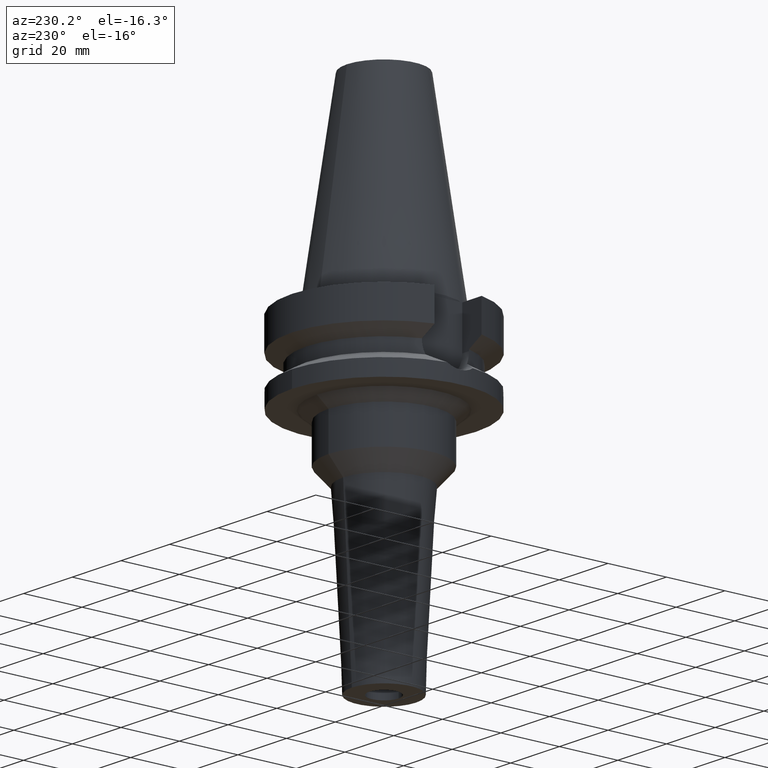
[diagram: clean part render]
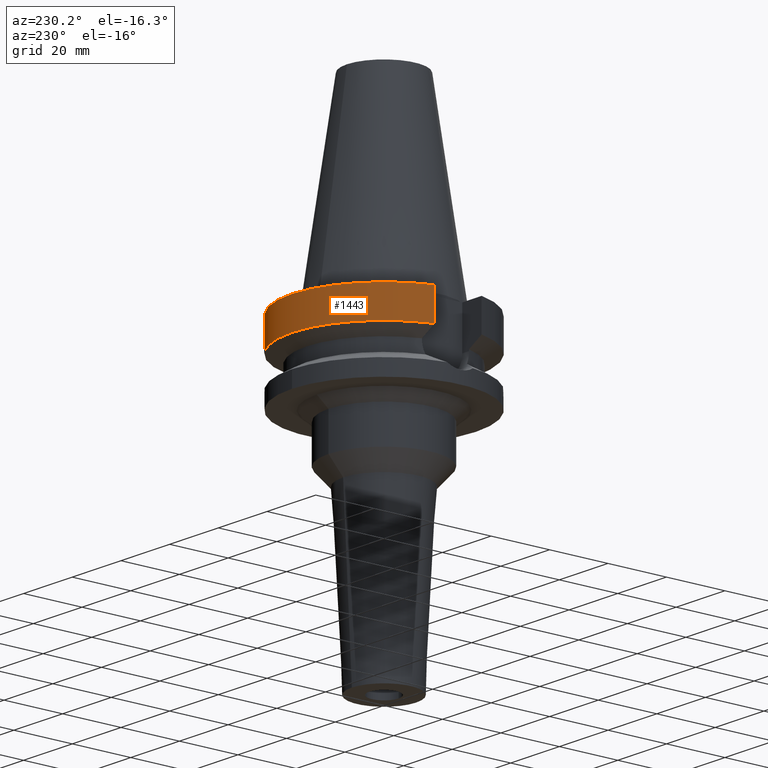
[diagram: same view with one face highlighted and labeled with its STEP entity id]
A machine part, auxiliary view. The second image highlights one B-rep face of the part: STEP entity #1443.
In plain terms, the highlighted cylindrical surface (partial cylindrical patch) has radius 31.5 mm, axis along (0, 0, -1).
Its self-contained STEP definition (entity closure, byte-faithful):
#108=CARTESIAN_POINT('',(0.E0,2.129905713077E-14,-1.E0));
#109=DIRECTION('',(0.E0,0.E0,-1.E0));
#110=DIRECTION('',(-9.667943721520E-1,2.555555555556E-1,0.E0));
#111=AXIS2_PLACEMENT_3D('',#108,#109,#110);
#116=CARTESIAN_POINT('',(0.E0,2.129905713077E-14,-1.E0));
#117=DIRECTION('',(0.E0,0.E0,-1.E0));
#118=DIRECTION('',(0.E0,1.E0,0.E0));
#119=AXIS2_PLACEMENT_3D('',#116,#117,#118);
#344=CARTESIAN_POINT('',(3.045402291376E1,8.049999277539E0,-1.156551215973E1));
#393=CARTESIAN_POINT('',(-3.045402162735E1,8.050004144141E0,-1.156546832401E1));
#414=CARTESIAN_POINT('',(0.E0,1.065333950388E-14,-1.156550565267E1));
#415=DIRECTION('',(0.E0,0.E0,1.E0));
#416=DIRECTION('',(9.667943721520E-1,2.555555555555E-1,0.E0));
#417=AXIS2_PLACEMENT_3D('',#414,#415,#416);
#422=CARTESIAN_POINT('',(0.E0,1.065333950388E-14,-1.156550565267E1));
#423=DIRECTION('',(0.E0,0.E0,1.E0));
#424=DIRECTION('',(0.E0,1.E0,0.E0));
#425=AXIS2_PLACEMENT_3D('',#422,#423,#424);
#430=DIRECTION('',(1.036806331515E-7,3.922345423256E-7,-9.999999999999E-1));
#431=VECTOR('',#430,1.056546832401E1);
#432=CARTESIAN_POINT('',(-3.045402272279E1,8.05E0,-1.E0));
#433=LINE('',#432,#431);
#437=DIRECTION('',(-1.807480303809E-8,6.837917851781E-8,1.E0));
#438=VECTOR('',#437,1.056551215973E1);
#439=CARTESIAN_POINT('',(3.045402291376E1,8.049999277539E0,-1.156551215973E1));
#440=LINE('',#439,#438);
#1098=CARTESIAN_POINT('',(-3.045402272279E1,8.05E0,-1.E0));
#1099=VERTEX_POINT('',#1098);
#1100=CARTESIAN_POINT('',(0.E0,3.15E1,-1.E0));
#1101=CARTESIAN_POINT('',(3.045402272279E1,8.05E0,-1.E0));
#1102=VERTEX_POINT('',#1100);
#1103=VERTEX_POINT('',#1101);
#1120=VERTEX_POINT('',#393);
#1125=VERTEX_POINT('',#344);
#1126=CARTESIAN_POINT('',(0.E0,3.15E1,-1.156550565267E1));
#1127=VERTEX_POINT('',#1126);
#1430=CARTESIAN_POINT('',(0.E0,2.129905713077E-14,7.392E1));
#1431=DIRECTION('',(0.E0,0.E0,-1.E0));
#1432=DIRECTION('',(0.E0,-1.E0,0.E0));
#1433=AXIS2_PLACEMENT_3D('',#1430,#1431,#1432);
#1434=CYLINDRICAL_SURFACE('',#1433,3.15E1);
#1435=ORIENTED_EDGE('',*,*,#1405,.T.);
#1436=ORIENTED_EDGE('',*,*,#1425,.F.);
#1437=ORIENTED_EDGE('',*,*,#1423,.F.);
#1438=ORIENTED_EDGE('',*,*,#1367,.T.);
#1439=ORIENTED_EDGE('',*,*,#1213,.F.);
#1440=ORIENTED_EDGE('',*,*,#1211,.F.);
#1441=EDGE_LOOP('',(#1435,#1436,#1437,#1438,#1439,#1440));
#1442=FACE_OUTER_BOUND('',#1441,.F.);
#112=CIRCLE('',#111,3.15E1);
#120=CIRCLE('',#119,3.15E1);
#418=CIRCLE('',#417,3.15E1);
#426=CIRCLE('',#425,3.15E1);
#1211=EDGE_CURVE('',#1099,#1102,#112,.T.);
#1213=EDGE_CURVE('',#1102,#1103,#120,.T.);
#1367=EDGE_CURVE('',#1125,#1103,#440,.T.);
#1405=EDGE_CURVE('',#1099,#1120,#433,.T.);
#1423=EDGE_CURVE('',#1125,#1127,#418,.T.);
#1425=EDGE_CURVE('',#1127,#1120,#426,.T.);
#1443=ADVANCED_FACE('',(#1442),#1434,.T.);